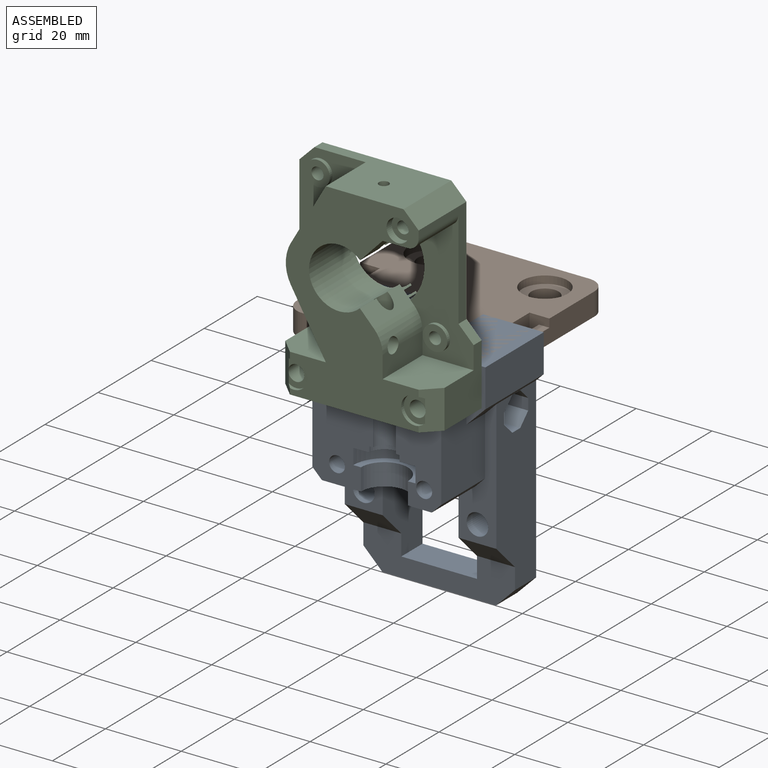
[diagram: assembled view]
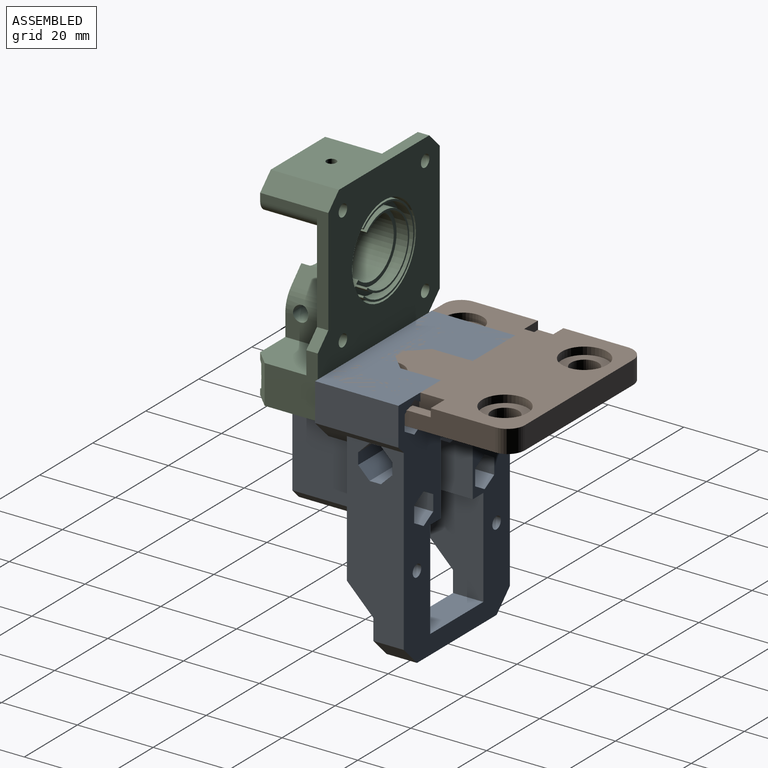
[diagram: assembled view, second angle]
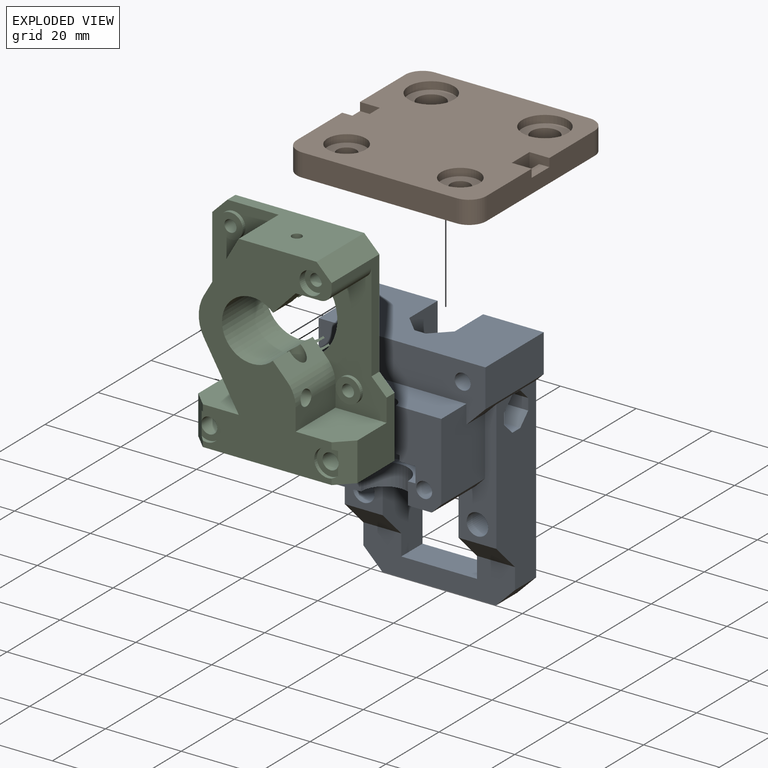
[diagram: exploded view]
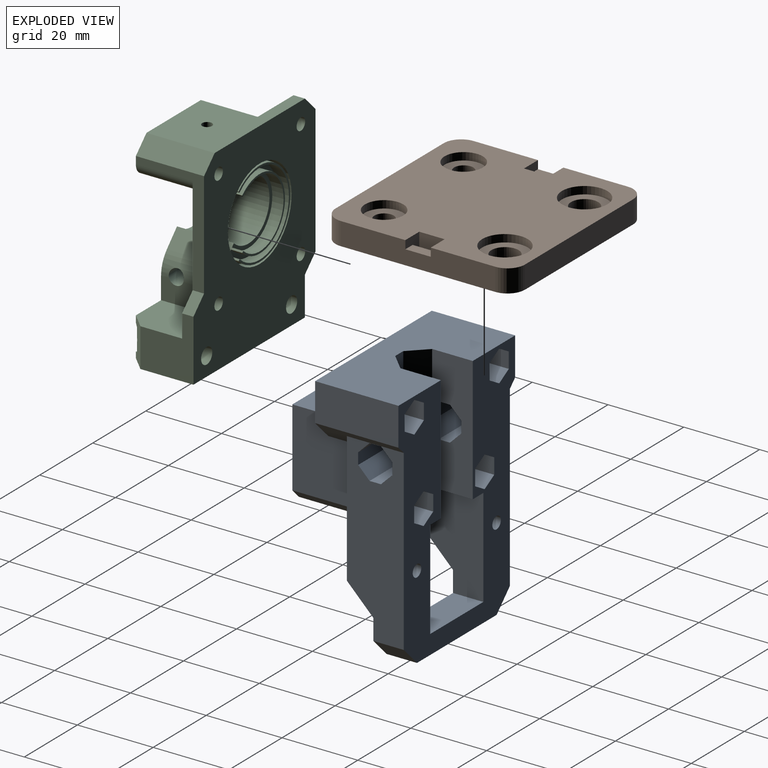
[diagram: exploded view, second angle]
ASSEMBLY  parts=3 mates=2
PART A: 94 faces, bbox 31.5x44x64 mm
  f0: plane 64x44mm, normal (-1,0,0), area 1467.2mm2, adj f5,f6,f9,f19,f20,f21,f22,f23
  f1: cylinder r=2.1mm len=10mm, axis (1,0,0), area 131.9mm2, adj f13,f87
  f2: cylinder r=2.1mm len=19.5mm, axis (1,0,0), area 257.3mm2, adj f10,f80
  f3: cylinder r=2.1mm len=19.5mm, axis (1,0,0), area 257.3mm2, adj f11,f73
  f4: cylinder r=2.1mm len=10mm, axis (1,0,0), area 131.9mm2, adj f13,f66
  f5: plane 47x15mm, normal (0,-1,0), area 578.7mm2, adj f0,f15,f17,f18,f26,f27,f58,f59
  f6: plane 33x10.7mm, normal (0,1,0), area 295.5mm2, adj f0,f7,f24,f29,f59,f60,f61,f62
  f7: plane 33x4.5mm, normal (-0.71,0.71,0), area 201.9mm2, adj f6,f24,f29,f36,f58,f62,f63
  f8: plane 33x4.5mm, normal (-0.71,-0.71,0), area 201.9mm2, adj f9,f24,f29,f36,f52,f53,f57
  f9: plane 33x10.7mm, normal (0,-1,0), area 295.5mm2, adj f0,f8,f24,f29,f50,f51,f52,f53
  f10: plane 23x16mm, normal (1,0,0), area 309.6mm2, adj f2,f12,f28,f29,f32,f43,f44,f45
  f11: plane 23x12mm, normal (1,0,0), area 217.6mm2, adj f3,f12,f29,f30,f31,f43,f44,f45
  f12: plane 34x9.5mm, normal (0,0,1), area 308.9mm2, adj f10,f11,f13,f28,f31,f49
  f13: plane 44x15mm, normal (1,0,0), area 437.3mm2, adj f1,f4,f12,f22,f23,f24,f25,f26
  f14: plane 34.5x10mm, normal (1,0,0), area 171.1mm2, adj f16,f21,f22,f29,f30,f31,f34,f39
  f15: plane 34.5x10mm, normal (1,0,0), area 171.1mm2, adj f5,f17,f26,f28,f29,f32,f35,f37
  f16: plane 10x7mm, normal (0.71,0,-0.71), area 99mm2, adj f14,f18,f21,f34
  f17: plane 10x7mm, normal (0.71,0,-0.71), area 99mm2, adj f5,f15,f18,f35
  f18: plane 40x10.5mm, normal (1,0,0), area 285mm2, adj f5,f16,f17,f19,f20,f21,f27,f33
  f19: plane 30x8mm, normal (0,0,-1), area 240mm2, adj f0,f18,f20,f27
  f20: plane 8x5mm, normal (0,0.71,-0.71), area 56.6mm2, adj f0,f18,f19,f21
  f21: plane 47x15mm, normal (0,1,0), area 578.7mm2, adj f0,f14,f16,f18,f20,f22,f50,f51
  f22: plane 22x5mm, normal (0,0.71,-0.71), area 91.9mm2, adj f0,f13,f14,f21,f23,f31
  f23: plane 22x10mm, normal (0,1,0), area 220mm2, adj f0,f13,f22,f24
  f24: plane 44x22mm, normal (0,0,1), area 805.8mm2, adj f0,f6,f7,f8,f9,f13,f23,f25
  f25: plane 22x10mm, normal (0,-1,0), area 220mm2, adj f0,f13,f24,f26
  f26: plane 22x5mm, normal (0,-0.71,-0.71), area 91.9mm2, adj f0,f5,f13,f15,f25,f28
  f27: plane 8x5mm, normal (0,-0.71,-0.71), area 56.6mm2, adj f0,f5,f18,f19
  f28: plane 20.5x16.5mm, normal (0,-1,0), area 303.2mm2, adj f10,f12,f13,f15,f26,f32
  f29: plane 31.5x29mm, normal (0,0,-1), area 556mm2, adj f0,f6,f7,f8,f9,f10,f11,f14
  f30: plane 16.5x2.5mm, normal (0,0.71,-0.71), area 58.3mm2, adj f11,f14,f29,f31
  f31: plane 20.5x16.5mm, normal (0,1,0), area 303.2mm2, adj f11,f12,f13,f14,f22,f30
  f32: plane 16.5x2.5mm, normal (0,-0.71,-0.71), area 58.3mm2, adj f10,f15,f28,f29
  f33: plane 20x8mm, normal (0,0,1), area 160mm2, adj f0,f18,f34,f35
  f34: plane 26x15mm, normal (0,-1,0), area 327mm2, adj f0,f14,f16,f18,f29,f33
  f35: plane 26x15mm, normal (0,1,0), area 327mm2, adj f0,f15,f17,f18,f29,f33
  f36: plane 33x3mm, normal (-1,0,0), area 99mm2, adj f7,f8,f24,f29
  f37: cylinder r=2.85mm len=8mm, axis (1,0,0), area 143.3mm2, adj f15,f38
  f38: plane 5.7x5.7mm, normal (1,0,0), area 17.5mm2, adj f37,f41
  f39: cylinder r=2.85mm len=8mm, axis (1,0,0), area 143.3mm2, adj f14,f40
  f40: plane 5.7x5.7mm, normal (1,0,0), area 17.5mm2, adj f39,f42
  f41: cylinder r=1.6mm len=7mm, axis (1,0,0), area 70.4mm2, adj f0,f38
  f42: cylinder r=1.6mm len=7mm, axis (1,0,0), area 70.4mm2, adj f0,f40
  f43: cylinder r=6.2mm len=12.4mm, axis (0,0,-1), area 113mm2, adj f10,f11,f29,f44
  f44: plane 16.4x8.2mm, normal (0,0,1), area 45.2mm2, adj f10,f11,f43,f45
  f45: cylinder r=8.2mm len=16.4mm, axis (0,0,-1), area 105.6mm2, adj f10,f11,f44,f46
  f46: plane 16.4x8.2mm, normal (0,0,-1), area 80.5mm2, adj f10,f11,f45,f47
  f47: cylinder r=4mm len=8mm, axis (0,0,-1), area 18.8mm2, adj f10,f11,f46,f48
  f48: plane 8x4mm, normal (0,0,-1), area 11mm2, adj f10,f11,f47,f49
  f49: cylinder r=3mm len=11.6mm, axis (0,0,-1), area 109.3mm2, adj f10,f11,f12,f48
  f50: plane 14x3.01mm, normal (0.71,0,-0.71), area 59.6mm2, adj f9,f21,f51,f56
  f51: plane 14x3mm, normal (0,0,-1), area 42mm2, adj f9,f21,f50,f52
  f52: plane 15.32x3.01mm, normal (-0.71,0,-0.71), area 60.9mm2, adj f8,f9,f21,f51,f57
  f53: plane 15.32x3.01mm, normal (-0.71,0,0.71), area 60.9mm2, adj f8,f9,f21,f54,f57
  f54: plane 14x3mm, normal (0,0,1), area 42mm2, adj f9,f21,f53,f55
  f55: plane 14x3.01mm, normal (0.71,0,0.71), area 59.6mm2, adj f9,f21,f54,f56
  f56: plane 14x3mm, normal (1,0,0), area 42mm2, adj f9,f21,f50,f55
  f57: plane 15.32x3mm, normal (-1,0,0), area 46mm2, adj f8,f21,f52,f53
  f58: plane 15.32x3mm, normal (-1,0,0), area 46mm2, adj f5,f7,f62,f63
  f59: plane 14x3mm, normal (1,0,0), area 42mm2, adj f5,f6,f60,f65
  f60: plane 14x3.01mm, normal (0.71,0,0.71), area 59.6mm2, adj f5,f6,f59,f61
  f61: plane 14x3mm, normal (0,0,1), area 42mm2, adj f5,f6,f60,f62
  f62: plane 15.32x3.01mm, normal (-0.71,0,0.71), area 60.9mm2, adj f5,f6,f7,f58,f61
  f63: plane 15.32x3.01mm, normal (-0.71,0,-0.71), area 60.9mm2, adj f5,f6,f7,f58,f64
  f64: plane 14x3mm, normal (0,0,-1), area 42mm2, adj f5,f6,f63,f65
  f65: plane 14x3.01mm, normal (0.71,0,-0.71), area 59.6mm2, adj f5,f6,f59,f64
  f66: plane 8.32x7.2mm, normal (-1,0,0), area 31.1mm2, adj f4,f67,f68,f69,f70,f71,f72
  f67: plane 12x3.6mm, normal (0,-0.5,0.87), area 49.9mm2, adj f0,f66,f68,f72
  f68: plane 12x3.6mm, normal (0,0.5,0.87), area 49.9mm2, adj f0,f66,f67,f69
  f69: plane 12x4.16mm, normal (0,1,0), area 49.9mm2, adj f0,f66,f68,f70
  f70: plane 12x3.6mm, normal (0,0.5,-0.87), area 49.9mm2, adj f0,f66,f69,f71
  f71: plane 12x3.6mm, normal (0,-0.5,-0.87), area 49.9mm2, adj f0,f66,f70,f72
  f72: plane 12x4.16mm, normal (0,-1,0), area 49.9mm2, adj f0,f66,f67,f71
  f73: plane 8.32x7.2mm, normal (-1,0,0), area 31.1mm2, adj f3,f74,f75,f76,f77,f78,f79
  f74: plane 12x3.6mm, normal (0,-0.5,0.87), area 49.9mm2, adj f0,f73,f75,f79
  f75: plane 12x3.6mm, normal (0,0.5,0.87), area 49.9mm2, adj f0,f73,f74,f76
  f76: plane 12x4.16mm, normal (0,1,0), area 49.9mm2, adj f0,f73,f75,f77
  f77: plane 12x3.6mm, normal (0,0.5,-0.87), area 49.9mm2, adj f0,f73,f76,f78
  f78: plane 12x3.6mm, normal (0,-0.5,-0.87), area 49.9mm2, adj f0,f73,f77,f79
  f79: plane 12x4.16mm, normal (0,-1,0), area 49.9mm2, adj f0,f73,f74,f78
  f80: plane 8.32x7.2mm, normal (-1,0,0), area 31.1mm2, adj f2,f81,f82,f83,f84,f85,f86
  f81: plane 12x3.6mm, normal (0,-0.5,0.87), area 49.9mm2, adj f0,f80,f82,f86
  f82: plane 12x3.6mm, normal (0,0.5,0.87), area 49.9mm2, adj f0,f80,f81,f83
  f83: plane 12x4.16mm, normal (0,1,0), area 49.9mm2, adj f0,f80,f82,f84
  f84: plane 12x3.6mm, normal (0,0.5,-0.87), area 49.9mm2, adj f0,f80,f83,f85
  f85: plane 12x3.6mm, normal (0,-0.5,-0.87), area 49.9mm2, adj f0,f80,f84,f86
  f86: plane 12x4.16mm, normal (0,-1,0), area 49.9mm2, adj f0,f80,f81,f85
  f87: plane 8.32x7.2mm, normal (-1,0,0), area 31.1mm2, adj f1,f88,f89,f90,f91,f92,f93
  f88: plane 12x3.6mm, normal (0,-0.5,0.87), area 49.9mm2, adj f0,f87,f89,f93
  f89: plane 12x3.6mm, normal (0,0.5,0.87), area 49.9mm2, adj f0,f87,f88,f90
  f90: plane 12x4.16mm, normal (0,1,0), area 49.9mm2, adj f0,f87,f89,f91
  f91: plane 12x3.6mm, normal (0,0.5,-0.87), area 49.9mm2, adj f0,f87,f90,f92
  f92: plane 12x3.6mm, normal (0,-0.5,-0.87), area 49.9mm2, adj f0,f87,f91,f93
  f93: plane 12x4.16mm, normal (0,-1,0), area 49.9mm2, adj f0,f87,f88,f92
PART B: 32 faces, bbox 50x50x6 mm
  f0: cylinder r=2.55mm len=5.1mm, axis (0,0,-1), area 64.1mm2, adj f5,f21
  f1: cylinder r=2.55mm len=5.1mm, axis (0,0,-1), area 64.1mm2, adj f5,f19
  f2: cylinder r=3.6mm len=7.2mm, axis (0,0,-1), area 90.5mm2, adj f5,f17
  f3: cylinder r=3.6mm len=7.2mm, axis (0,0,-1), area 90.5mm2, adj f5,f15
  f4: plane 50x50mm, normal (0,0,1), area 2024.8mm2, adj f6,f7,f8,f9,f10,f11,f12,f13
  f5: plane 50x50mm, normal (0,0,-1), area 2325.8mm2, adj f0,f1,f2,f3,f6,f7,f8,f9
  f6: cylinder r=4.63mm len=6mm, axis (0,0,-1), area 43.7mm2, adj f4,f5,f7,f13
  f7: plane 40.73x6mm, normal (-1,0,0), area 229.8mm2, adj f4,f5,f6,f8,f22,f24,f25
  f8: cylinder r=4.63mm len=6mm, axis (0,0,-1), area 43.7mm2, adj f4,f5,f7,f9
  f9: plane 40.73x6mm, normal (0,-1,0), area 244.4mm2, adj f4,f5,f8,f10
  f10: cylinder r=4.63mm len=6mm, axis (0,0,-1), area 43.7mm2, adj f4,f5,f9,f11
  f11: plane 40.73x6mm, normal (1,0,0), area 229.8mm2, adj f4,f5,f10,f12,f26,f27,f29
  f12: cylinder r=4.63mm len=6mm, axis (0,0,-1), area 43.7mm2, adj f4,f5,f11,f13
  f13: plane 40.73x6mm, normal (0,1,0), area 244.4mm2, adj f4,f5,f6,f12
  f14: cylinder r=6mm len=12mm, axis (0,0,1), area 75.4mm2, adj f4,f15
  f15: plane 12x12mm, normal (0,0,1), area 72.4mm2, adj f3,f14
  f16: cylinder r=6mm len=12mm, axis (0,0,1), area 75.4mm2, adj f4,f17
  f17: plane 12x12mm, normal (0,0,1), area 72.4mm2, adj f2,f16
  f18: cylinder r=5.05mm len=10.1mm, axis (0,0,1), area 63.5mm2, adj f4,f19
  f19: plane 10.1x10.1mm, normal (0,0,1), area 59.7mm2, adj f1,f18
  f20: cylinder r=5.05mm len=10.1mm, axis (0,0,1), area 63.5mm2, adj f4,f21
  f21: plane 10.1x10.1mm, normal (0,0,1), area 59.7mm2, adj f0,f20
  f22: plane 6x5.25mm, normal (0,-1,0), area 21mm2, adj f4,f5,f7,f23,f25,f30
  f23: plane 6.7x6mm, normal (-1,0,0), area 40.2mm2, adj f4,f5,f22,f24
  f24: plane 6x5.25mm, normal (0,1,0), area 21mm2, adj f4,f5,f7,f23,f25,f30
  f25: plane 6.7x2.75mm, normal (0,0,1), area 18.4mm2, adj f7,f22,f24,f30
  f26: plane 6x5.25mm, normal (0,-1,0), area 21mm2, adj f4,f5,f11,f28,f29,f31
  f27: plane 6x5.25mm, normal (0,1,0), area 21mm2, adj f4,f5,f11,f28,f29,f31
  f28: plane 6.7x6mm, normal (1,0,0), area 40.2mm2, adj f4,f5,f26,f27
  f29: plane 6.7x2.75mm, normal (0,0,1), area 18.4mm2, adj f11,f26,f27,f31
  f30: plane 6.7x3.82mm, normal (1,0,0), area 25.6mm2, adj f5,f22,f24,f25
  f31: plane 6.7x3.82mm, normal (-1,0,0), area 25.6mm2, adj f5,f26,f27,f29
PART C: 86 faces, bbox 46.2x18.2x52.4 mm
  f0: plane 18x15.26mm, normal (0,1,0), area 41.6mm2, adj f26,f27,f43,f75
  f1: plane 22x18.64mm, normal (0,1,0), area 71.8mm2, adj f26,f27,f72,f76
  f2: plane 38x16.72mm, normal (0,-1,0), area 337.3mm2, adj f4,f5,f18,f19,f20,f21,f23,f24
  f3: plane 34.01x18mm, normal (0,0,1), area 363mm2, adj f12,f14,f21,f22,f29,f32,f44,f45
  f4: plane 15x6.5mm, normal (0,0,-1), area 97.5mm2, adj f2,f27,f28,f32
  f5: plane 15x2mm, normal (1,0,0), area 30mm2, adj f2,f21,f28,f32
  f6: plane 9.75x3.59mm, normal (0,0.5,0.87), area 38mm2, adj f7,f31,f57,f66
  f7: plane 12.15x4.15mm, normal (0,1,0), area 45.5mm2, adj f6,f8,f31,f66
  f8: plane 13.35x3.59mm, normal (0,0.5,-0.87), area 52.9mm2, adj f7,f31,f58,f66
  f9: cylinder r=2.15mm len=25.49mm, axis (0,0,-1), area 330.8mm2, adj f13,f26,f43
  f10: cylinder r=2.1mm len=17mm, axis (0,1,0), area 224.3mm2, adj f12,f60,f65
  f11: cylinder r=2.1mm len=17mm, axis (0,1,0), area 224.3mm2, adj f12,f61,f63
  f12: plane 52.2x46mm, normal (0,1,0), area 1688.2mm2, adj f3,f10,f11,f13,f15,f16,f17,f18
  f13: plane 42x18mm, normal (0,0,-1), area 725.5mm2, adj f9,f12,f17,f18,f32,f60,f61
  f14: plane 42x17.5mm, normal (0,-1,0), area 403.4mm2, adj f3,f15,f16,f22,f29,f30,f31,f33
  f15: plane 34.01x3mm, normal (-1,0,0), area 102mm2, adj f12,f14,f16,f22
  f16: plane 4x4mm, normal (-0.71,0,-0.71), area 17mm2, adj f12,f14,f15,f17
  f17: plane 14x10.2mm, normal (-1,0,0), area 142.8mm2, adj f12,f13,f16,f33,f60
  f18: plane 16.2x14mm, normal (1,0,0), area 160.8mm2, adj f2,f12,f13,f19,f23,f61
  f19: plane 4x4mm, normal (0.71,0,0.71), area 17mm2, adj f2,f12,f18,f20
  f20: plane 28x3mm, normal (1,0,0), area 84mm2, adj f2,f12,f19,f21
  f21: plane 18x4mm, normal (0.71,0,0.71), area 101.8mm2, adj f2,f3,f5,f12,f20,f32,f67,f68
  f22: plane 3.99x3.99mm, normal (-0.71,0,0.71), area 16.9mm2, adj f3,f12,f14,f15
  f23: plane 15x13.5mm, normal (0,0,1), area 194.5mm2, adj f2,f18,f24,f32,f61
  f24: plane 15x5.79mm, normal (1,0,0), area 83.4mm2, adj f2,f23,f25,f32,f56
  f25: cylinder r=8mm len=15mm, axis (0,-1,0), area 82.4mm2, adj f2,f24,f26,f32,f56
  f26: plane 18x3.98mm, normal (0.72,0,0.69), area 71.8mm2, adj f0,f1,f2,f9,f25,f32,f43,f69
  f27: plane 18.15x6.39mm, normal (0.72,0,-0.69), area 126.9mm2, adj f0,f1,f2,f4,f32,f43,f44,f45
  f28: cylinder r=3mm len=15mm, axis (0,-1,0), area 70.7mm2, adj f2,f4,f5,f32
  f29: plane 16x15mm, normal (-0.87,0,0.5), area 277.1mm2, adj f3,f14,f30,f32
  f30: cylinder r=10mm len=15mm, axis (0,-1,0), area 157.1mm2, adj f14,f29,f31,f32
  f31: plane 16x15mm, normal (-0.87,0,-0.5), area 225.5mm2, adj f6,f7,f8,f14,f30,f32,f33,f57
  f32: plane 52.2x35.08mm, normal (0,-1,0), area 931.7mm2, adj f3,f4,f5,f13,f21,f23,f24,f25
  f33: plane 15x13.5mm, normal (0,0,1), area 194.5mm2, adj f14,f17,f31,f32,f60
  f34: cylinder r=3.25mm len=6.5mm, axis (0,1,0), area 20.4mm2, adj f2,f36
  f35: cylinder r=1.6mm len=4mm, axis (0,1,0), area 40.2mm2, adj f12,f36
  f36: plane 6.5x6.5mm, normal (0,-1,0), area 25.1mm2, adj f34,f35
  f37: cylinder r=3.25mm len=6.5mm, axis (0,1,0), area 20.4mm2, adj f14,f39
  f38: cylinder r=1.6mm len=4mm, axis (0,1,0), area 40.2mm2, adj f12,f39
  f39: plane 6.5x6.5mm, normal (0,-1,0), area 25.1mm2, adj f37,f38
  f40: cylinder r=3.25mm len=6.5mm, axis (0,1,0), area 20.4mm2, adj f14,f42
  f41: cylinder r=1.6mm len=4mm, axis (0,1,0), area 40.2mm2, adj f12,f42
  f42: plane 6.5x6.5mm, normal (0,-1,0), area 25.1mm2, adj f40,f41
  f43: cylinder r=7.95mm len=15.9mm, axis (0,-1,0), area 549mm2, adj f0,f9,f26,f27,f32,f48,f49,f50
  f44: cylinder r=1.31mm len=14.41mm, axis (0,0,-1), area 11.6mm2, adj f3,f27,f45,f50
  f45: cylinder r=1.32mm len=13.7mm, axis (0,0,-1), area 12.1mm2, adj f3,f27,f44,f46
  f46: cylinder r=1.32mm len=13.71mm, axis (0,0,-1), area 12.1mm2, adj f3,f27,f45,f47
  f47: cylinder r=1.3mm len=14.42mm, axis (0,0,-1), area 11.6mm2, adj f3,f27,f46,f51
  f48: cylinder r=1.3mm len=14.61mm, axis (0,0,-1), area 10mm2, adj f3,f43,f49,f52
  f49: cylinder r=1.3mm len=14.77mm, axis (0,0,-1), area 10.4mm2, adj f3,f43,f48,f50
  f50: cylinder r=1.3mm len=15.24mm, axis (0,0,-1), area 21.9mm2, adj f3,f27,f43,f44,f49
  f51: cylinder r=1.28mm len=15.24mm, axis (0,0,-1), area 21.8mm2, adj f3,f27,f43,f47,f52
  f52: cylinder r=1.3mm len=14.77mm, axis (0,0,-1), area 6mm2, adj f3,f43,f48,f51
  f53: cylinder r=3mm len=6mm, axis (0,-1,0), area 37.7mm2, adj f32,f54
  f54: plane 6x6mm, normal (0,-1,0), area 20.2mm2, adj f53,f55
  f55: cylinder r=1.6mm len=16mm, axis (0,-1,0), area 160.8mm2, adj f12,f54
  f56: cylinder r=2mm len=7.8mm, axis (1,0,0), area 98mm2, adj f24,f25,f66
  f57: plane 9.75x3.59mm, normal (0,-0.5,0.87), area 38mm2, adj f6,f31,f59,f66
  f58: plane 13.35x3.59mm, normal (0,-0.5,-0.87), area 52.9mm2, adj f8,f31,f59,f66
  f59: plane 12.15x4.15mm, normal (0,-1,0), area 45.5mm2, adj f31,f57,f58,f66
  f60: plane 10.4x4.2mm, normal (-0.71,-0.71,0), area 48.4mm2, adj f10,f13,f17,f32,f33,f64,f65
  f61: plane 10.4x4.2mm, normal (0.71,-0.71,0), area 48.4mm2, adj f11,f13,f18,f23,f32,f62,f63
  f62: cylinder r=3.6mm len=7.2mm, axis (0,-1,0), area 14.4mm2, adj f32,f61,f63
  f63: plane 7.2x5.6mm, normal (0,-1,0), area 20.2mm2, adj f11,f61,f62
  f64: cylinder r=3.6mm len=7.2mm, axis (0,-1,0), area 14.4mm2, adj f32,f60,f65
  f65: plane 7.2x5.6mm, normal (0,-1,0), area 20.2mm2, adj f10,f60,f64
  f66: plane 8.3x7.19mm, normal (-1,0,0), area 32.2mm2, adj f6,f7,f8,f56,f57,f58,f59
  f67: plane 7.5x5.5mm, normal (0,0,1), area 41.3mm2, adj f3,f21,f68
  f68: plane 5.5x0mm, normal (0,1,0), area 0mm2, adj f3,f21,f67
  f69: plane 24x20.33mm, normal (0,1,0), area 27.4mm2, adj f26,f27,f70,f73
  f70: cylinder r=12mm len=24mm, axis (0,1,0), area 226.2mm2, adj f2,f12,f69
  f71: plane 23x19.49mm, normal (0,1,0), area 26.3mm2, adj f26,f27,f72,f73
  f72: cylinder r=11mm len=22mm, axis (0,-1,0), area 154.1mm2, adj f1,f26,f27,f71
  f73: cylinder r=11.5mm len=23mm, axis (0,-1,0), area 161.1mm2, adj f26,f27,f69,f71
  f74: plane 19x16.1mm, normal (0,1,0), area 21.6mm2, adj f26,f27,f75,f76
  f75: cylinder r=9mm len=18mm, axis (0,-1,0), area 126.1mm2, adj f0,f26,f27,f74
  f76: cylinder r=9.5mm len=19mm, axis (0,-1,0), area 133.1mm2, adj f1,f26,f27,f74
  f77: plane 7.5x1.88mm, normal (-1,0,0), area 14.1mm2, adj f78,f82,f83,f84
  f78: plane 7.5x3.82mm, normal (-0.71,0,-0.71), area 40.6mm2, adj f77,f79,f82,f84
  f79: plane 7.5x5.08mm, normal (0,0,-1), area 38.1mm2, adj f78,f80,f82,f84
  f80: plane 8.4x7.5mm, normal (1,0,0), area 63mm2, adj f79,f81,f82,f84
  f81: plane 7.5x6.2mm, normal (0,0,1), area 46.5mm2, adj f80,f82,f83,f84
  f82: plane 8.9x8.4mm, normal (0,-1,0), area 54.6mm2, adj f77,f78,f79,f80,f81,f83,f85
  f83: cylinder r=2.7mm len=7.5mm, axis (0,1,0), area 31.8mm2, adj f77,f81,f82,f84
  f84: plane 8.9x8.4mm, normal (0,1,0), area 54.6mm2, adj f77,f78,f79,f80,f81,f83,f85
  f85: cylinder r=1.9mm len=7.5mm, axis (0,1,0), area 89.5mm2, adj f82,f84
PLACE A rot(axis=(0,0,-1),90deg) t=(24.75,-35.52,-67.99)mm
PLACE B t=(-5.49,-32.45,-9.99)mm
PLACE C t=(-24.49,-57.52,-13.99)mm
MATE planar B.f4 <-> A.f24  axis (0,0,1) through (-5.49,-32.97,-3.99)mm
MATE fastened C.f10 <-> A.f1  axis (0,1,0) through (-15.49,-57.52,-8.99)mm
